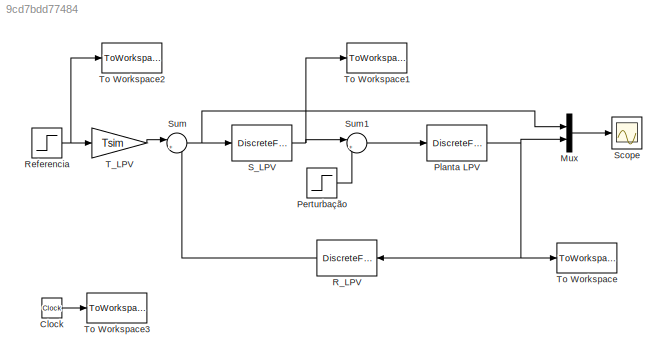
MODEL slx_9cd7bdd77484
KIND model
CONFIG AbsTol = auto
CONFIG EnableMultiTasking = off
CONFIG FixedStep = auto
CONFIG MaxStep = auto
CONFIG MinStep = auto
CONFIG RelTol = 1e-3
CONFIG SampleTimeConstraint = Unconstrained
CONFIG Solver = VariableStepAuto
CONFIG SolverName = VariableStepAuto
CONFIG StartTime = 0.0
CONFIG StopTime = tsim
BLOCK [Clock] Clock
BLOCK [Mux] Mux
  DisplayOption = bar
  Inputs = 2
  Ports = [2, 1]
BLOCK [Step] Perturbação
  After = 0.1
  SampleTime = 0
  Time = 5
BLOCK [DiscreteFilter] Planta LPV
  Denominator = Asim
  InputPortMap = u0
  Numerator = Bsim
  Ports = [1, 1]
  SampleTime = Ts
BLOCK [DiscreteFilter] R_LPV
  Denominator = 1
  InputPortMap = u0
  Numerator = Rsim
  Ports = [1, 1]
  SampleTime = Ts
BLOCK [Step] Referencia
  SampleTime = 0
BLOCK [DiscreteFilter] S_LPV
  Denominator = Ssim
  InputPortMap = u0
  Numerator = 1
  Ports = [1, 1]
  SampleTime = Ts
BLOCK [Scope] Scope
  NumInputPorts = 1
  Ports = [1]
  ScopeSpecificationString = Simulink.scopes.TimeScopeBlockCfg('CurrentConfiguration', extmgr.ConfigurationSet(extmgr.Configuration('Core','General UI',true),extmgr.Configuration('Core','Source UI',true),extmgr.Configuration('Sources','WiredSimulink',true),extmgr.Configuration('Visuals','Time Domain',true,'SerializedDisplays',{struct('MinYLimReal','-0.47483','MaxYLimReal','1.16387','YLabelReal','','MinYLimMag','0.00000','MaxY...<+1360ch>
BLOCK [Sum] Sum
  IconShape = round
  InputSameDT = off
  Inputs = |+-
  OutDataTypeStr = Inherit: Inherit via internal rule
  Ports = [2, 1]
  SaturateOnIntegerOverflow = off
BLOCK [Sum] Sum1
  IconShape = round
  InputSameDT = off
  Inputs = |+-
  OutDataTypeStr = Inherit: Inherit via internal rule
  Ports = [2, 1]
  SaturateOnIntegerOverflow = off
BLOCK [Gain] T_LPV
  Gain = Tsim
  OutDataTypeStr = Inherit: Inherit via internal rule
  ParamDataTypeStr = Inherit: Inherit via internal rule
  SaturateOnIntegerOverflow = off
BLOCK [ToWorkspace] To Workspace
  FixptAsFi = on
  MaxDataPoints = inf
  Ports = [1]
  SampleTime = Ts
  Save2DSignal = 3-D array (concatenate along third dimension)
  VariableName = ysim
BLOCK [ToWorkspace] To Workspace1
  FixptAsFi = on
  MaxDataPoints = inf
  Ports = [1]
  SampleTime = Ts
  Save2DSignal = 3-D array (concatenate along third dimension)
  VariableName = usim
BLOCK [ToWorkspace] To Workspace2
  FixptAsFi = on
  MaxDataPoints = inf
  Ports = [1]
  SampleTime = Ts
  Save2DSignal = 3-D array (concatenate along third dimension)
  VariableName = rsim
BLOCK [ToWorkspace] To Workspace3
  FixptAsFi = on
  MaxDataPoints = inf
  Ports = [1]
  SampleTime = Ts
  Save2DSignal = 3-D array (concatenate along third dimension)
  VariableName = time
LINE Clock:1 -> To Workspace3:1
LINE Mux:1 -> Scope:1
LINE Perturbação:1 -> Sum1:2
NET Planta LPV:1 -> Mux:2, R_LPV:1, To Workspace:1
LINE R_LPV:1 -> Sum:2
NET Referencia:1 -> T_LPV:1, To Workspace2:1
NET S_LPV:1 -> Sum1:1, To Workspace1:1
LINE Sum1:1 -> Planta LPV:1
NET Sum:1 -> Mux:1, S_LPV:1
LINE T_LPV:1 -> Sum:1
note: NET lines group one-source signal fan-out (src -> all destinations, sorted); 1:1 wires keep LINE
